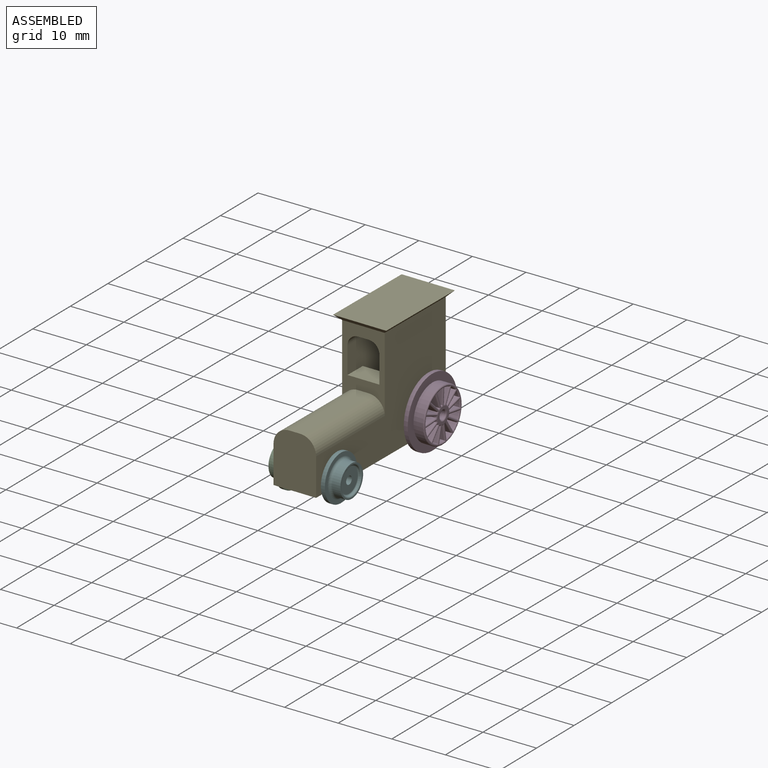
[diagram: assembled view]
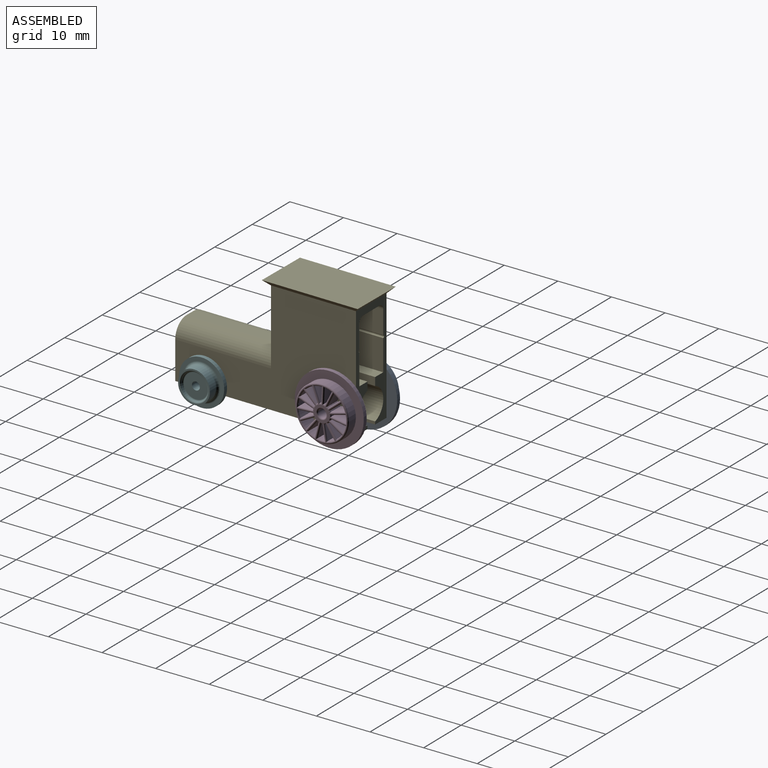
[diagram: assembled view, second angle]
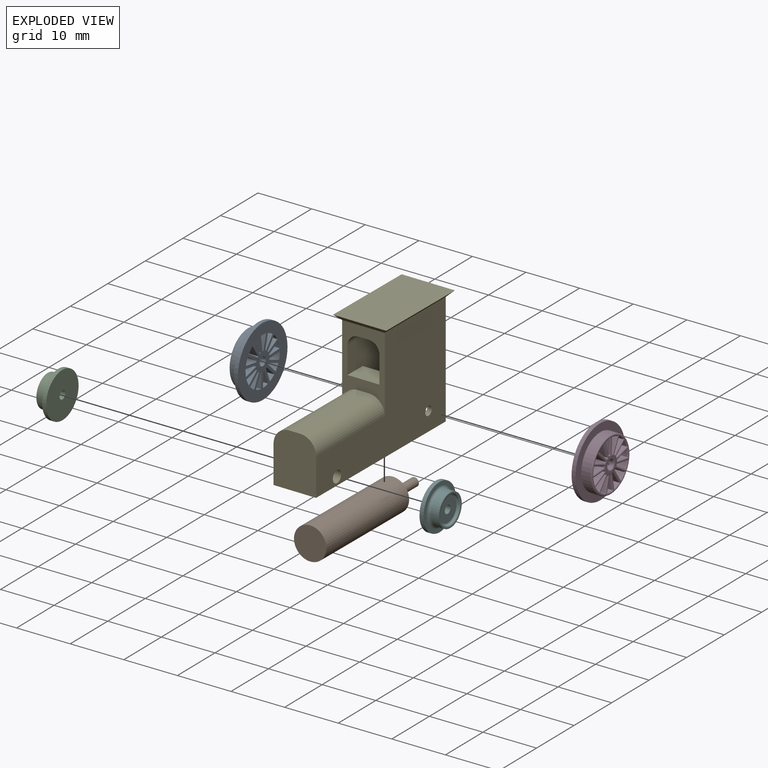
[diagram: exploded view]
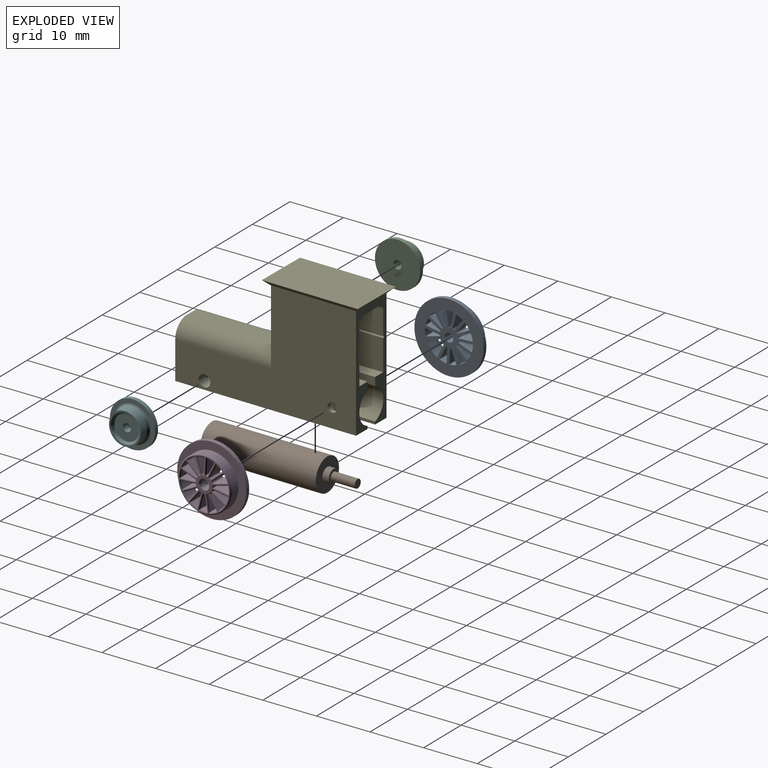
[diagram: exploded view, second angle]
ASSEMBLY  parts=6 mates=9
PART A: 98 faces, bbox 13x2.8x13 mm
  f0: plane 3x3mm, normal (0,1,0), area 3.6mm2, adj f66,f67,f68,f69,f70,f71,f72,f73
  f1: plane 13x13mm, normal (0,-1,0), area 97.4mm2, adj f3,f5,f6,f7,f8,f9,f10,f11
  f2: cylinder r=5mm len=10mm, axis (0,1,0), area 55mm2, adj f4,f91
  f3: cylinder r=6.5mm len=13mm, axis (0,1,0), area 30.6mm2, adj f1,f4
  f4: plane 13x13mm, normal (0,1,0), area 54.2mm2, adj f2,f3
  f5: cylinder r=0.8mm len=2.5mm, axis (0,-1,0), area 12.6mm2, adj f1,f97
  f6: cylinder r=1.75mm len=2.5mm, axis (0,-1,0), area 0.6mm2, adj f1,f7,f9,f66
  f7: plane 2.76x2.5mm, normal (-1,0,0), area 6.9mm2, adj f1,f6,f8,f79
  f8: cylinder r=4.5mm len=2.5mm, axis (0,-1,0), area 3.5mm2, adj f1,f7,f9,f91
  f9: plane 2.52x2.5mm, normal (0.91,0,0.41), area 6.9mm2, adj f1,f6,f8,f78
  f10: cylinder r=1.75mm len=2.5mm, axis (0,-1,0), area 0.6mm2, adj f1,f11,f13,f70
  f11: plane 2.75x2.5mm, normal (0.1,0,0.99), area 6.9mm2, adj f1,f10,f12,f83
  f12: cylinder r=4.5mm len=2.5mm, axis (0,-1,0), area 3.5mm2, adj f1,f11,f13,f91
  f13: plane 2.63x2.5mm, normal (0.31,0,-0.95), area 6.9mm2, adj f1,f10,f12,f82
  f14: cylinder r=1.75mm len=2.5mm, axis (0,-1,0), area 0.6mm2, adj f1,f15,f17,f71
  f15: plane 2.5x2.39mm, normal (0.5,0,0.87), area 6.9mm2, adj f1,f14,f16,f84
  f16: cylinder r=4.5mm len=2.5mm, axis (0,-1,0), area 3.5mm2, adj f1,f15,f17,f91
  f17: plane 2.75x2.5mm, normal (-0.1,0,-0.99), area 6.9mm2, adj f1,f14,f16,f83
  f18: cylinder r=1.75mm len=2.5mm, axis (0,-1,0), area 0.6mm2, adj f1,f19,f21,f73
  f19: plane 2.7x2.5mm, normal (0.98,0,0.21), area 6.9mm2, adj f1,f18,f20,f86
  f20: cylinder r=4.5mm len=2.5mm, axis (0,-1,0), area 3.5mm2, adj f1,f19,f21,f91
  f21: plane 2.5x2.23mm, normal (-0.81,0,-0.59), area 6.9mm2, adj f1,f18,f20,f85
  f22: cylinder r=1.75mm len=2.5mm, axis (0,-1,0), area 0.6mm2, adj f1,f23,f25,f72
  f23: plane 2.5x2.23mm, normal (0.81,0,0.59), area 6.9mm2, adj f1,f22,f24,f85
  f24: cylinder r=4.5mm len=2.5mm, axis (0,-1,0), area 3.5mm2, adj f1,f23,f25,f91
  f25: plane 2.5x2.39mm, normal (-0.5,0,-0.87), area 6.9mm2, adj f1,f22,f24,f84
  f26: cylinder r=1.75mm len=2.5mm, axis (0,-1,0), area 0.6mm2, adj f1,f27,f29,f68
  f27: plane 2.5x2.05mm, normal (-0.67,0,0.74), area 6.9mm2, adj f1,f26,f28,f81
  f28: cylinder r=4.5mm len=2.5mm, axis (0,-1,0), area 3.5mm2, adj f1,f27,f29,f91
  f29: plane 2.52x2.5mm, normal (0.91,0,-0.41), area 6.9mm2, adj f1,f26,f28,f80
  f30: cylinder r=1.75mm len=2.5mm, axis (0,-1,0), area 0.6mm2, adj f1,f31,f33,f69
  f31: plane 2.63x2.5mm, normal (-0.31,0,0.95), area 6.9mm2, adj f1,f30,f32,f82
  f32: cylinder r=4.5mm len=2.5mm, axis (0,-1,0), area 3.5mm2, adj f1,f31,f33,f91
  f33: plane 2.5x2.05mm, normal (0.67,0,-0.74), area 6.9mm2, adj f1,f30,f32,f81
  f34: cylinder r=1.75mm len=2.5mm, axis (0,-1,0), area 0.6mm2, adj f1,f35,f37,f76
  f35: plane 2.5x2.39mm, normal (0.5,0,-0.87), area 6.9mm2, adj f1,f34,f36,f89
  f36: cylinder r=4.5mm len=2.5mm, axis (0,-1,0), area 3.5mm2, adj f1,f35,f37,f91
  f37: plane 2.5x2.23mm, normal (-0.81,0,0.59), area 6.9mm2, adj f1,f34,f36,f88
  f38: cylinder r=1.75mm len=2.5mm, axis (0,-1,0), area 0.6mm2, adj f1,f39,f41,f77
  f39: plane 2.75x2.5mm, normal (0.1,0,-0.99), area 6.9mm2, adj f1,f38,f40,f90
  f40: cylinder r=4.5mm len=2.5mm, axis (0,-1,0), area 3.5mm2, adj f1,f39,f41,f91
  f41: plane 2.5x2.39mm, normal (-0.5,0,0.87), area 6.9mm2, adj f1,f38,f40,f89
  f42: cylinder r=1.75mm len=2.5mm, axis (0,-1,0), area 0.6mm2, adj f1,f43,f45,f74
  f43: plane 2.7x2.5mm, normal (0.98,0,-0.21), area 6.9mm2, adj f1,f42,f44,f87
  f44: cylinder r=4.5mm len=2.5mm, axis (0,-1,0), area 3.5mm2, adj f1,f43,f45,f91
  f45: plane 2.7x2.5mm, normal (-0.98,0,-0.21), area 6.9mm2, adj f1,f42,f44,f86
  f46: cylinder r=1.75mm len=2.5mm, axis (0,-1,0), area 0.6mm2, adj f1,f47,f49,f75
  f47: plane 2.5x2.23mm, normal (0.81,0,-0.59), area 6.9mm2, adj f1,f46,f48,f88
  f48: cylinder r=4.5mm len=2.5mm, axis (0,-1,0), area 3.5mm2, adj f1,f47,f49,f91
  f49: plane 2.7x2.5mm, normal (-0.98,0,0.21), area 6.9mm2, adj f1,f46,f48,f87
  f50: plane 2.52x2.5mm, normal (-0.91,0,-0.41), area 6.9mm2, adj f1,f51,f53,f78
  f51: cylinder r=4.5mm len=2.5mm, axis (0,-1,0), area 3.5mm2, adj f1,f50,f52,f91
  f52: plane 2.5x2.05mm, normal (0.67,0,0.74), area 6.9mm2, adj f1,f51,f53,f94
  f53: cylinder r=1.75mm len=2.5mm, axis (0,-1,0), area 0.6mm2, adj f1,f50,f52,f92
  f54: plane 2.52x2.5mm, normal (-0.91,0,0.41), area 6.9mm2, adj f1,f55,f57,f80
  f55: cylinder r=4.5mm len=2.5mm, axis (0,-1,0), area 3.5mm2, adj f1,f54,f56,f91
  f56: plane 2.76x2.5mm, normal (1,0,0), area 6.9mm2, adj f1,f55,f57,f79
  f57: cylinder r=1.75mm len=2.5mm, axis (0,-1,0), area 0.6mm2, adj f1,f54,f56,f67
  f58: cylinder r=1.75mm len=2.5mm, axis (0,-1,0), area 0.6mm2, adj f1,f59,f61,f93
  f59: plane 2.63x2.5mm, normal (-0.31,0,-0.95), area 6.9mm2, adj f1,f58,f60,f95
  f60: cylinder r=4.5mm len=2.5mm, axis (0,-1,0), area 3.5mm2, adj f1,f59,f61,f91
  f61: plane 2.75x2.5mm, normal (-0.1,0,0.99), area 6.9mm2, adj f1,f58,f60,f90
  f62: cylinder r=1.75mm len=2.5mm, axis (0,-1,0), area 0.6mm2, adj f1,f63,f65,f96
  f63: plane 2.5x2.05mm, normal (-0.67,0,-0.74), area 6.9mm2, adj f1,f62,f64,f94
  f64: cylinder r=4.5mm len=2.5mm, axis (0,-1,0), area 3.5mm2, adj f1,f63,f65,f91
  f65: plane 2.63x2.5mm, normal (0.31,0,0.95), area 6.9mm2, adj f1,f62,f64,f95
  f66: torus R=1.5mm, axis (0,-1,0), area 0.1mm2, adj f0,f6,f78,f79
  f67: torus R=1.5mm, axis (0,-1,0), area 0.1mm2, adj f0,f57,f79,f80
  f68: torus R=1.5mm, axis (0,-1,0), area 0.1mm2, adj f0,f26,f80,f81
  f69: torus R=1.5mm, axis (0,-1,0), area 0.1mm2, adj f0,f30,f81,f82
  f70: torus R=1.5mm, axis (0,-1,0), area 0.1mm2, adj f0,f10,f82,f83
  f71: torus R=1.5mm, axis (0,-1,0), area 0.1mm2, adj f0,f14,f83,f84
  f72: torus R=1.5mm, axis (0,-1,0), area 0.1mm2, adj f0,f22,f84,f85
  f73: torus R=1.5mm, axis (0,-1,0), area 0.1mm2, adj f0,f18,f85,f86
  f74: torus R=1.5mm, axis (0,-1,0), area 0.1mm2, adj f0,f42,f86,f87
  f75: torus R=1.5mm, axis (0,-1,0), area 0.1mm2, adj f0,f46,f87,f88
  f76: torus R=1.5mm, axis (0,-1,0), area 0.1mm2, adj f0,f34,f88,f89
  f77: torus R=1.5mm, axis (0,-1,0), area 0.1mm2, adj f0,f38,f89,f90
  f78: cylinder r=0.25mm len=3.17mm, axis (0.41,0,-0.91), area 2.3mm2, adj f9,f50,f66,f91,f92
  f79: cylinder r=0.25mm len=3.25mm, axis (0,0,1), area 2.3mm2, adj f7,f56,f66,f67,f91
  f80: cylinder r=0.25mm len=3.17mm, axis (0.41,0,0.91), area 2.3mm2, adj f29,f54,f67,f68,f91
  f81: cylinder r=0.25mm len=2.75mm, axis (0.74,0,0.67), area 2.3mm2, adj f27,f33,f68,f69,f91
  f82: cylinder r=0.25mm len=3.25mm, axis (0.95,0,0.31), area 2.3mm2, adj f13,f31,f69,f70,f91
  f83: cylinder r=0.25mm len=3.28mm, axis (0.99,0,-0.1), area 2.3mm2, adj f11,f17,f70,f71,f91
  f84: cylinder r=0.25mm len=3.06mm, axis (0.87,0,-0.5), area 2.3mm2, adj f15,f25,f71,f72,f91
  f85: cylinder r=0.25mm len=2.92mm, axis (0.59,0,-0.81), area 2.3mm2, adj f21,f23,f72,f73,f91
  f86: cylinder r=0.25mm len=3.28mm, axis (0.21,0,-0.98), area 2.3mm2, adj f19,f45,f73,f74,f91
  f87: cylinder r=0.25mm len=3.28mm, axis (-0.21,0,-0.98), area 2.3mm2, adj f43,f49,f74,f75,f91
  f88: cylinder r=0.25mm len=2.92mm, axis (-0.59,0,-0.81), area 2.3mm2, adj f37,f47,f75,f76,f91
  f89: cylinder r=0.25mm len=3.06mm, axis (-0.87,0,-0.5), area 2.3mm2, adj f35,f41,f76,f77,f91
  f90: cylinder r=0.25mm len=3.28mm, axis (-0.99,0,-0.1), area 2.3mm2, adj f39,f61,f77,f91,f93
  f91: torus R=4.75mm, axis (0,-1,0), area 21.6mm2, adj f2,f8,f12,f16,f20,f24,f28,f32
  f92: torus R=1.5mm, axis (0,-1,0), area 0.1mm2, adj f0,f53,f78,f94
  f93: torus R=1.5mm, axis (0,-1,0), area 0.1mm2, adj f0,f58,f90,f95
  f94: cylinder r=0.25mm len=2.75mm, axis (0.74,0,-0.67), area 2.3mm2, adj f52,f63,f91,f92,f96
  f95: cylinder r=0.25mm len=3.25mm, axis (-0.95,0,0.31), area 2.3mm2, adj f59,f65,f91,f93,f96
  f96: torus R=1.5mm, axis (0,-1,0), area 0.1mm2, adj f0,f62,f94,f95
  f97: torus R=1.05mm, axis (0,-1,0), area 2.2mm2, adj f0,f5
PART B: 7 faces, bbox 6.1x27.4x6.1 mm
  f0: cylinder r=3.05mm len=21.7mm, axis (0,1,0), area 415.9mm2, adj f1,f2
  f1: plane 6.1x6.1mm, normal (0,-1,0), area 23.9mm2, adj f0,f3
  f2: plane 6.1x6.1mm, normal (0,1,0), area 29.2mm2, adj f0
  f3: cylinder r=1.3mm len=2.6mm, axis (0,1,0), area 9.8mm2, adj f1,f4
  f4: plane 2.6x2.6mm, normal (0,-1,0), area 3.3mm2, adj f3,f5
  f5: cylinder r=0.8mm len=4.5mm, axis (0,1,0), area 22.6mm2, adj f4,f6
  f6: plane 1.6x1.6mm, normal (0,-1,0), area 2mm2, adj f5
PART C: 10 faces, bbox 8.5x8.5x2.8 mm
  f0: cylinder r=0.75mm len=2.25mm, axis (0,0,1), area 10.6mm2, adj f3,f6
  f1: cylinder r=4.25mm len=8.5mm, axis (0,0,-1), area 20mm2, adj f2,f3
  f2: plane 8.5x8.5mm, normal (0,0,1), area 18.3mm2, adj f1,f9
  f3: plane 8.5x8.5mm, normal (0,0,-1), area 55mm2, adj f0,f1
  f4: cylinder r=3mm len=6mm, axis (0,0,-1), area 28.3mm2, adj f5,f9
  f5: plane 6x6mm, normal (0,0,1), area 4.5mm2, adj f4,f8
  f6: plane 4.5x4.5mm, normal (0,0,1), area 14.1mm2, adj f0,f7
  f7: torus R=2.25mm, axis (0,0,1), area 5.9mm2, adj f6,f8
  f8: torus R=2.75mm, axis (0,0,1), area 6.4mm2, adj f5,f7
  f9: torus R=3.5mm, axis (0,0,1), area 15.7mm2, adj f2,f4
PART D: same geometry as A
PART E: 42 faces, bbox 35x10x22 mm
  f0: plane 14x8mm, normal (1,0,0), area 51.6mm2, adj f5,f7,f8,f11,f12,f29,f30,f31
  f1: plane 13.11x6.25mm, normal (-1,0,0), area 34.6mm2, adj f3,f4,f15,f16,f17,f18,f19,f20
  f2: plane 21x8mm, normal (-1,0,0), area 60.9mm2, adj f3,f4,f7,f8,f9,f13,f14,f15
  f3: cylinder r=3.15mm len=30mm, axis (-1,0,0), area 493.1mm2, adj f1,f2,f10,f13,f14,f19,f20,f21
  f4: plane 12x2.13mm, normal (0,0,1), area 25.5mm2, adj f1,f2,f18,f19
  f5: plane 18x2mm, normal (0,0,1), area 36mm2, adj f0,f6,f11,f12
  f6: plane 10x8mm, normal (1,0,0), area 76.1mm2, adj f5,f7,f8,f9,f11,f12
  f7: plane 34x21mm, normal (0,1,0), area 455.9mm2, adj f0,f2,f6,f9,f11,f21,f24,f38
  f8: plane 34x21mm, normal (0,-1,0), area 455.9mm2, adj f0,f2,f6,f9,f12,f22,f23,f40
  f9: plane 34x8mm, normal (0,0,-1), area 212mm2, adj f2,f6,f7,f8,f10,f13,f14
  f10: plane 6.65x6.3mm, normal (-1,0,0), area 32mm2, adj f3,f9,f13,f14
  f11: cylinder r=3mm len=18mm, axis (1,0,0), area 84.8mm2, adj f0,f5,f6,f7
  f12: cylinder r=3mm len=18mm, axis (-1,0,0), area 84.8mm2, adj f0,f5,f6,f8
  f13: plane 30x0.51mm, normal (0,1,0), area 15.3mm2, adj f2,f3,f9,f10,f22
  f14: plane 30x0.51mm, normal (0,-1,0), area 15.3mm2, adj f2,f3,f9,f10,f21
  f15: plane 12x4.25mm, normal (0,0,-1), area 51mm2, adj f1,f2,f35,f36
  f16: plane 12x10.6mm, normal (0,-1,0), area 124.7mm2, adj f1,f2,f17,f27,f28,f35
  f17: plane 12x2.13mm, normal (0,0,1), area 25.5mm2, adj f1,f2,f16,f20
  f18: plane 12x10.6mm, normal (0,1,0), area 124.7mm2, adj f1,f2,f4,f25,f26,f36
  f19: plane 12x1.51mm, normal (0,1,0), area 18.2mm2, adj f1,f2,f3,f4
  f20: plane 12x1.51mm, normal (0,-1,0), area 18.2mm2, adj f1,f2,f3,f17
  f21: cylinder r=1.1mm len=3mm, axis (0,1,0), area 12.5mm2, adj f3,f7,f14
  f22: cylinder r=1.1mm len=3mm, axis (0,1,0), area 12.5mm2, adj f3,f8,f13
  f23: cylinder r=0.85mm len=1.7mm, axis (0,1,0), area 4.9mm2, adj f3,f8
  f24: cylinder r=0.85mm len=1.7mm, axis (0,1,0), area 4.8mm2, adj f3,f7
  f25: cylinder r=0.25mm len=5mm, axis (-1,0,0), area 3.9mm2, adj f2,f18,f26
  f26: plane 0.5x0.25mm, normal (-1,0,0), area 0.1mm2, adj f18,f25
  f27: cylinder r=0.25mm len=5mm, axis (-1,0,0), area 3.9mm2, adj f2,f16,f28
  f28: plane 0.5x0.25mm, normal (-1,0,0), area 0.1mm2, adj f16,f27
  f29: plane 4x2mm, normal (0,0,-1), area 8mm2, adj f0,f1,f33,f34
  f30: plane 5x4mm, normal (0,1,0), area 20mm2, adj f0,f1,f31,f33
  f31: plane 6x4mm, normal (0,0,1), area 24mm2, adj f0,f1,f30,f32
  f32: plane 5x4mm, normal (0,-1,0), area 20mm2, adj f0,f1,f31,f34
  f33: cylinder r=2mm len=4mm, axis (1,0,0), area 12.6mm2, adj f0,f1,f29,f30
  f34: cylinder r=2mm len=4mm, axis (-1,0,0), area 12.6mm2, adj f0,f1,f29,f32
  f35: cylinder r=1mm len=12mm, axis (-1,0,0), area 18.8mm2, adj f1,f2,f15,f16
  f36: cylinder r=1mm len=12mm, axis (1,0,0), area 18.8mm2, adj f1,f2,f15,f18
  f37: plane 10x1mm, normal (0.71,0,-0.71), area 12.7mm2, adj f0,f38,f40,f41
  f38: plane 18x1mm, normal (0,0.71,-0.71), area 24mm2, adj f7,f37,f39,f41
  f39: plane 10x1mm, normal (-0.71,0,-0.71), area 12.7mm2, adj f2,f38,f40,f41
  f40: plane 18x1mm, normal (0,-0.71,-0.71), area 24mm2, adj f8,f37,f39,f41
  f41: plane 18x10mm, normal (0,0,1), area 180mm2, adj f37,f38,f39,f40
PART F: same geometry as C
PLACE A rot(axis=(0.08,-0.08,0.99),89.8deg) t=(-22.63,9.72,-39.25)mm
PLACE B rot(axis=(-0.55,0,0.84),179.5deg) t=(-16.16,-15.81,-39.25)mm
PLACE C rot(axis=(0.67,-0.3,-0.68),147.5deg) t=(-20.15,-14.3,-41.25)mm
PLACE D rot(axis=(-0.71,-0.7,-0.06),173.3deg) t=(-9.13,9.57,-39.25)mm
PLACE E rot(axis=(0,0,-1),90.6deg) t=(-16.02,-2.85,-42.75)mm
PLACE F rot(axis=(0.64,0.44,0.63),131.9deg) t=(-12.15,-14.39,-41.25)mm
MATE cylindrical E.f21 <-> C.f0  axis (1,-0.01,0) through (-20.15,-14.3,-41.25)mm
MATE planar E.f21 <-> C.f0  axis (-1,0.01,0) through (-20.15,-14.3,-41.25)mm
MATE cylindrical B.f0 <-> E.f3  axis (-0.01,-1,0) through (-16.04,-4.96,-39.25)mm
MATE planar E.f8 <-> A.f3  axis (-1,0.01,0) through (-19.97,1.65,-34.08)mm
MATE planar E.f21 <-> F.f0  axis (1,-0.01,0) through (-12.15,-14.39,-41.25)mm
MATE cylindrical D.f5 <-> E.f23  axis (-1,0.01,0) through (-9.38,9.58,-39.25)mm
MATE cylindrical E.f21 <-> F.f0  axis (1,-0.01,0) through (-12.15,-14.39,-41.25)mm
MATE cylindrical A.f5 <-> E.f23  axis (1,-0.01,0) through (-22.38,9.72,-39.25)mm
MATE planar D.f1 <-> E.f7  axis (-1,0.01,0) through (-11.83,14,-38.29)mm
